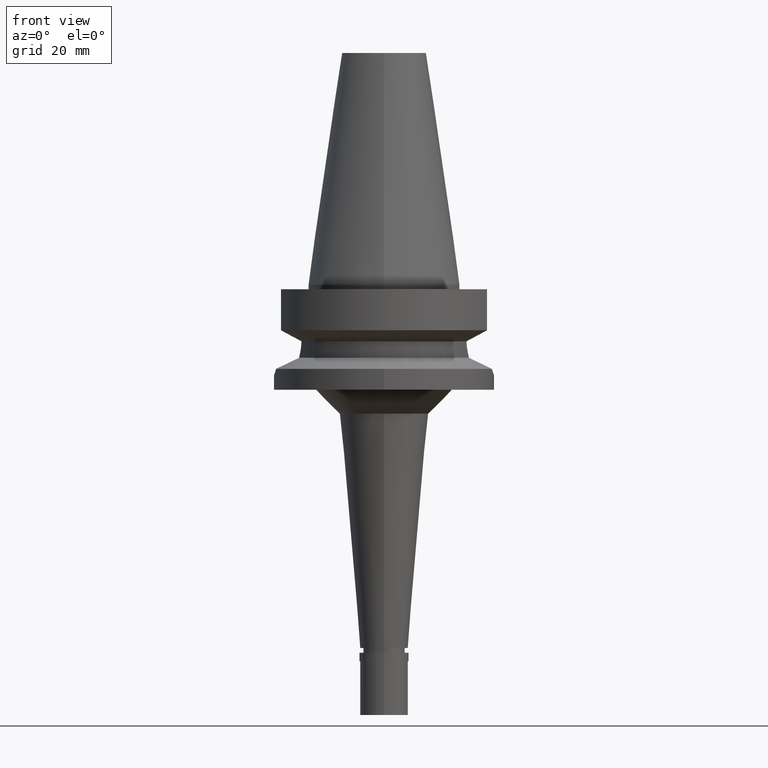
[diagram: clean part render]
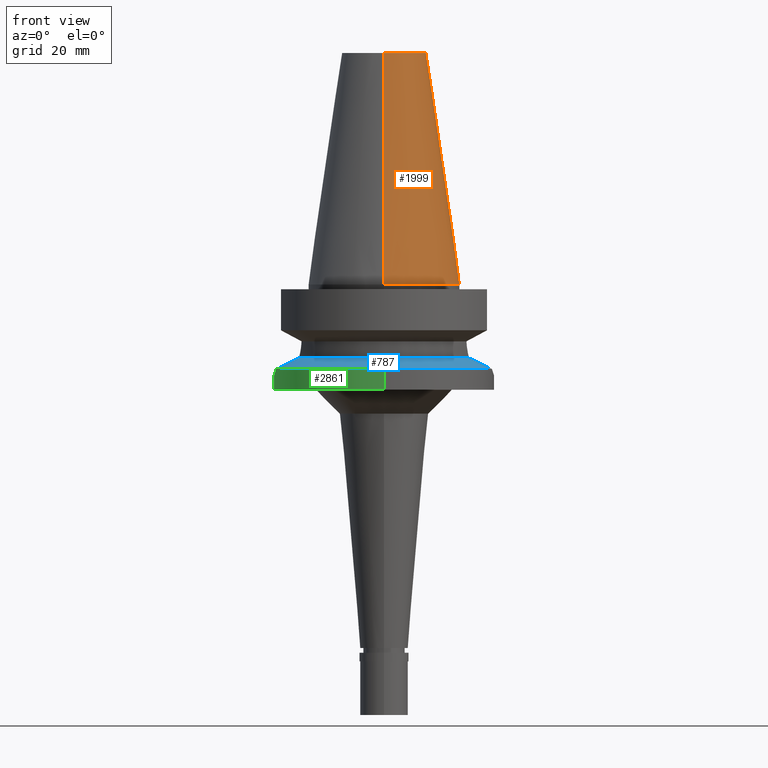
[diagram: same view with three faces highlighted in distinct colors, each labeled with its STEP entity id]
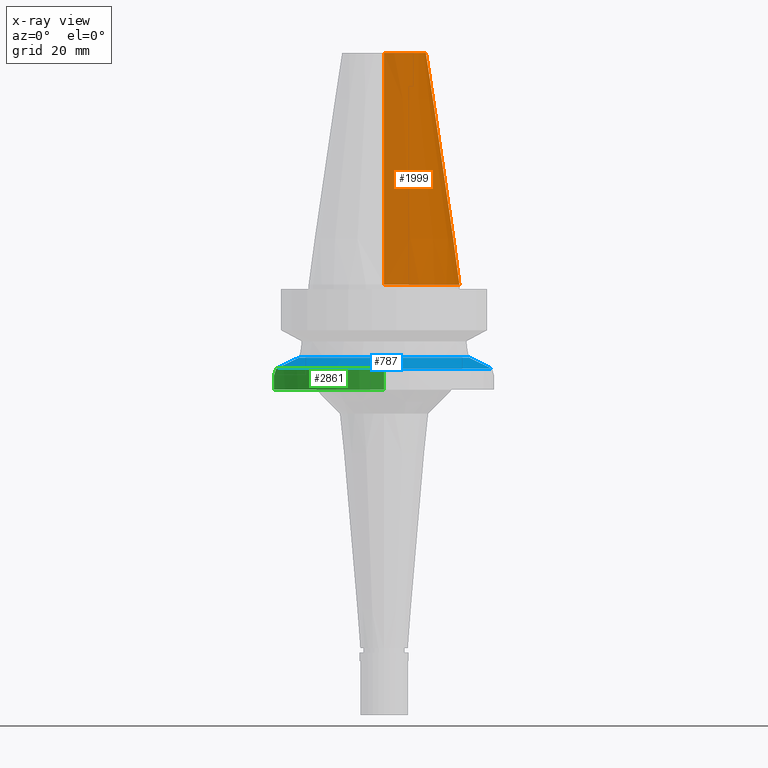
[diagram: x-ray of the same camera — body ghosted, the three highlighted faces saturated]
A machine part, front view with three faces highlighted in distinct colors.
The next image is the same camera in x-ray (body ghosted, the three faces saturated) — at least one of them is partly hidden behind the body in this view.
Their STEP definitions:

[orange] entity #1999 — the highlighted conical surface has half-angle 8.297 deg.
#13 = VERTEX_POINT ( 'NONE', #2253 ) ;
#24 = EDGE_CURVE ( 'NONE', #13, #2837, #2209, .T. ) ;
#30 = DIRECTION ( 'NONE',  ( 0.0000000000000000000, 1.000000000000000000, 0.0000000000000000000 ) ) ;
#53 = AXIS2_PLACEMENT_3D ( 'NONE', #379, #2668, #1052 ) ;
#176 = EDGE_CURVE ( 'NONE', #1570, #722, #1206, .T. ) ;
#271 = ORIENTED_EDGE ( 'NONE', *, *, #24, .T. ) ;
#379 = CARTESIAN_POINT ( 'NONE',  ( 0.0000000000000000000, 1.521011324540999938E-14, 24.19999999999999929 ) ) ;
#381 = AXIS2_PLACEMENT_3D ( 'NONE', #613, #1989, #1974 ) ;
#424 = CARTESIAN_POINT ( 'NONE',  ( 0.0000000000000000000, -8.816791732783000768, 48.39999999999999858 ) ) ;
#427 = CARTESIAN_POINT ( 'NONE',  ( 0.0000000000000000000, 15.87500000000000000, -1.847411112975999717E-13 ) ) ;
#520 = DIRECTION ( 'NONE',  ( 0.0000000000000000000, 0.1443043893539925626, -0.9895333461855498891 ) ) ;
#540 = VECTOR ( 'NONE', #1559, 1000.000000000000114 ) ;
#613 = CARTESIAN_POINT ( 'NONE',  ( 0.0000000000000000000, 1.521011324540999938E-14, 48.39999999999999858 ) ) ;
#722 = VERTEX_POINT ( 'NONE', #427 ) ;
#749 = ORIENTED_EDGE ( 'NONE', *, *, #176, .F. ) ;
#941 = EDGE_CURVE ( 'NONE', #1570, #13, #1284, .T. ) ;
#1045 = CARTESIAN_POINT ( 'NONE',  ( 0.0000000000000000000, 8.816791732783000768, 48.39999999999999858 ) ) ;
#1052 = DIRECTION ( 'NONE',  ( 0.0000000000000000000, -1.000000000000000000, 0.0000000000000000000 ) ) ;
#1206 = LINE ( 'NONE', #1454, #1718 ) ;
#1284 = CIRCLE ( 'NONE', #381, 8.816791732783000768 ) ;
#1292 = EDGE_LOOP ( 'NONE', ( #1398, #271, #2726, #749 ) ) ;
#1398 = ORIENTED_EDGE ( 'NONE', *, *, #941, .T. ) ;
#1454 = CARTESIAN_POINT ( 'NONE',  ( 0.0000000000000000000, 8.816791732783000768, 48.39999999999999858 ) ) ;
#1559 = DIRECTION ( 'NONE',  ( 0.0000000000000000000, -0.1443043893539925626, -0.9895333461855498891 ) ) ;
#1570 = VERTEX_POINT ( 'NONE', #1045 ) ;
#1599 = CARTESIAN_POINT ( 'NONE',  ( 0.0000000000000000000, 1.521011324540999938E-14, -3.694822225953000089E-13 ) ) ;
#1718 = VECTOR ( 'NONE', #520, 1000.000000000000114 ) ;
#1818 = AXIS2_PLACEMENT_3D ( 'NONE', #1599, #2503, #30 ) ;
#1938 = FACE_OUTER_BOUND ( 'NONE', #1292, .T. ) ;
#1974 = DIRECTION ( 'NONE',  ( 0.0000000000000000000, 1.000000000000000000, 0.0000000000000000000 ) ) ;
#1989 = DIRECTION ( 'NONE',  ( 0.0000000000000000000, 0.0000000000000000000, -1.000000000000000000 ) ) ;
#1999 = ADVANCED_FACE ( 'NONE', ( #1938 ), #2757, .T. ) ;
#2209 = LINE ( 'NONE', #424, #540 ) ;
#2253 = CARTESIAN_POINT ( 'NONE',  ( 0.0000000000000000000, -8.816791732783000768, 48.39999999999999858 ) ) ;
#2265 = EDGE_CURVE ( 'NONE', #722, #2837, #2529, .T. ) ;
#2503 = DIRECTION ( 'NONE',  ( 0.0000000000000000000, 0.0000000000000000000, -1.000000000000000000 ) ) ;
#2529 = CIRCLE ( 'NONE', #1818, 15.87500000000000000 ) ;
#2668 = DIRECTION ( 'NONE',  ( 0.0000000000000000000, 0.0000000000000000000, -1.000000000000000000 ) ) ;
#2726 = ORIENTED_EDGE ( 'NONE', *, *, #2265, .F. ) ;
#2757 = CONICAL_SURFACE ( 'NONE', #53, 12.34589586639000025, 0.1448099680379422438 ) ;
#2837 = VERTEX_POINT ( 'NONE', #2927 ) ;
#2927 = CARTESIAN_POINT ( 'NONE',  ( 0.0000000000000000000, -15.87500000000000000, -1.847411112975999717E-13 ) ) ;

[blue] entity #787 — the highlighted conical surface has half-angle 60 deg.
#7 = AXIS2_PLACEMENT_3D ( 'NONE', #482, #64, #1198 ) ;
#8 = DIRECTION ( 'NONE',  ( 0.0000000000000000000, -1.000000000000000000, 0.0000000000000000000 ) ) ;
#9 = VERTEX_POINT ( 'NONE', #1341 ) ;
#64 = DIRECTION ( 'NONE',  ( 0.0000000000000000000, 0.0000000000000000000, -1.000000000000000000 ) ) ;
#90 = CARTESIAN_POINT ( 'NONE',  ( 17.75736593456000278, -6.758398853743999624, -15.32339055352999857 ) ) ;
#101 = EDGE_CURVE ( 'NONE', #2897, #2338, #1432, .T. ) ;
#124 = CARTESIAN_POINT ( 'NONE',  ( -17.75736593456000278, -6.758398853743999624, -15.32339055352999857 ) ) ;
#146 = AXIS2_PLACEMENT_3D ( 'NONE', #1677, #490, #2753 ) ;
#280 = CARTESIAN_POINT ( 'NONE',  ( -22.55786346208000026, -4.488072640470000430, -17.63279163029000074 ) ) ;
#482 = CARTESIAN_POINT ( 'NONE',  ( 0.0000000000000000000, 1.022848384030000006E-14, -16.47809109191000232 ) ) ;
#483 = B_SPLINE_CURVE_WITH_KNOTS ( 'NONE', 3,
 ( #1263, #1276, #2168, #124 ),
 .UNSPECIFIED., .F., .F.,
 ( 4, 4 ),
 ( 0.0000000000000000000, 1.000000000000000000 ),
 .UNSPECIFIED. ) ;
#485 = EDGE_CURVE ( 'NONE', #1382, #2897, #483, .T. ) ;
#490 = DIRECTION ( 'NONE',  ( 0.0000000000000000000, 0.0000000000000000000, 1.000000000000000000 ) ) ;
#514 = CARTESIAN_POINT ( 'NONE',  ( -17.75736593456000278, -6.758398853743999624, -15.32339055352999857 ) ) ;
#718 = ORIENTED_EDGE ( 'NONE', *, *, #1160, .F. ) ;
#787 = ADVANCED_FACE ( 'NONE', ( #808 ), #1968, .T. ) ;
#808 = FACE_OUTER_BOUND ( 'NONE', #2780, .T. ) ;
#825 = CIRCLE ( 'NONE', #2484, 23.00000000000001066 ) ;
#882 = EDGE_CURVE ( 'NONE', #1651, #9, #825, .T. ) ;
#977 = CARTESIAN_POINT ( 'NONE',  ( 0.0000000000000000000, 1.022848384030000006E-14, -17.63279163029000074 ) ) ;
#1073 = CARTESIAN_POINT ( 'NONE',  ( 22.55786346208000026, -4.488072640470000430, -17.63279163029000074 ) ) ;
#1153 = ORIENTED_EDGE ( 'NONE', *, *, #485, .F. ) ;
#1160 = EDGE_CURVE ( 'NONE', #9, #1382, #1244, .T. ) ;
#1198 = DIRECTION ( 'NONE',  ( 0.0000000000000000000, -1.000000000000000000, 0.0000000000000000000 ) ) ;
#1244 = CIRCLE ( 'NONE', #2419, 23.00000000000000000 ) ;
#1247 = B_SPLINE_CURVE_WITH_KNOTS ( 'NONE', 3,
 ( #90, #2378, #2833, #2808 ),
 .UNSPECIFIED., .F., .F.,
 ( 4, 4 ),
 ( 0.0000000000000000000, 1.000000000000000000 ),
 .UNSPECIFIED. ) ;
#1263 = CARTESIAN_POINT ( 'NONE',  ( -22.55786346208000026, -4.488072640470000430, -17.63279163029000074 ) ) ;
#1276 = CARTESIAN_POINT ( 'NONE',  ( -21.37344794595160380, -5.343258989439327422, -17.05846002343262313 ) ) ;
#1341 = CARTESIAN_POINT ( 'NONE',  ( 0.0000000000000000000, -23.00000000000000000, -17.63279163029000074 ) ) ;
#1382 = VERTEX_POINT ( 'NONE', #280 ) ;
#1432 = CIRCLE ( 'NONE', #146, 19.00000000000000000 ) ;
#1609 = DIRECTION ( 'NONE',  ( 0.9807766722643714852, -0.1951335930638943839, 0.0000000000000000000 ) ) ;
#1625 = DIRECTION ( 'NONE',  ( 0.0000000000000000000, 0.0000000000000000000, -1.000000000000000000 ) ) ;
#1651 = VERTEX_POINT ( 'NONE', #1073 ) ;
#1677 = CARTESIAN_POINT ( 'NONE',  ( 0.0000000000000000000, 1.022848384030000006E-14, -15.32339055352999857 ) ) ;
#1853 = ORIENTED_EDGE ( 'NONE', *, *, #101, .F. ) ;
#1968 = CONICAL_SURFACE ( 'NONE', #7, 21.00000000000000000, 1.047197551196400456 ) ;
#2060 = ORIENTED_EDGE ( 'NONE', *, *, #2942, .F. ) ;
#2061 = CARTESIAN_POINT ( 'NONE',  ( 0.0000000000000000000, 1.022848384030000006E-14, -17.63279163029000074 ) ) ;
#2168 = CARTESIAN_POINT ( 'NONE',  ( -19.77328210344494153, -6.137069160773991783, -16.28355951931771628 ) ) ;
#2311 = DIRECTION ( 'NONE',  ( 0.0000000000000000000, 0.0000000000000000000, -1.000000000000000000 ) ) ;
#2338 = VERTEX_POINT ( 'NONE', #2538 ) ;
#2357 = ORIENTED_EDGE ( 'NONE', *, *, #882, .F. ) ;
#2378 = CARTESIAN_POINT ( 'NONE',  ( 19.77328210355009475, -6.137069160734052176, -16.28355951937946600 ) ) ;
#2419 = AXIS2_PLACEMENT_3D ( 'NONE', #2061, #2311, #8 ) ;
#2484 = AXIS2_PLACEMENT_3D ( 'NONE', #977, #1625, #1609 ) ;
#2538 = CARTESIAN_POINT ( 'NONE',  ( 17.75736593456000278, -6.758398853743999624, -15.32339055352999857 ) ) ;
#2753 = DIRECTION ( 'NONE',  ( 0.0000000000000000000, -1.000000000000000000, 0.0000000000000000000 ) ) ;
#2780 = EDGE_LOOP ( 'NONE', ( #718, #2357, #2060, #1853, #1153 ) ) ;
#2808 = CARTESIAN_POINT ( 'NONE',  ( 22.55786346208000026, -4.488072640470000430, -17.63279163029000074 ) ) ;
#2833 = CARTESIAN_POINT ( 'NONE',  ( 21.37344794605676412, -5.343258989378282919, -17.05846002347363211 ) ) ;
#2897 = VERTEX_POINT ( 'NONE', #514 ) ;
#2942 = EDGE_CURVE ( 'NONE', #2338, #1651, #1247, .T. ) ;

[green] entity #2861 — the highlighted cylindrical surface (partial cylindrical patch) has radius 23 mm, axis along (0, 0, -1).
#2 = CARTESIAN_POINT ( 'NONE',  ( -22.55786346208000026, 4.488072640470000430, -17.63279163029000074 ) ) ;
#8 = DIRECTION ( 'NONE',  ( 0.0000000000000000000, -1.000000000000000000, 0.0000000000000000000 ) ) ;
#9 = VERTEX_POINT ( 'NONE', #1341 ) ;
#49 = CARTESIAN_POINT ( 'NONE',  ( -22.99968787904577994, -0.4019489961674416745, -18.99908015454936105 ) ) ;
#81 = CARTESIAN_POINT ( 'NONE',  ( -22.88248210310216990, -2.323175083979335920, -18.65751861243187903 ) ) ;
#83 = ORIENTED_EDGE ( 'NONE', *, *, #936, .F. ) ;
#97 = CARTESIAN_POINT ( 'NONE',  ( -23.00029662913051354, 0.3642194551311406792, -19.00087563674810909 ) ) ;
#144 = DIRECTION ( 'NONE',  ( 0.0000000000000000000, 2.277793377031000010E-14, -1.000000000000000000 ) ) ;
#166 = DIRECTION ( 'NONE',  ( -0.9807766722643714852, 0.1951335930638943839, 0.0000000000000000000 ) ) ;
#251 = ORIENTED_EDGE ( 'NONE', *, *, #2481, .T. ) ;
#280 = CARTESIAN_POINT ( 'NONE',  ( -22.55786346208000026, -4.488072640470000430, -17.63279163029000074 ) ) ;
#289 = CARTESIAN_POINT ( 'NONE',  ( -22.94716318959646273, -1.569022884965406650, -18.84812733467171952 ) ) ;
#299 = AXIS2_PLACEMENT_3D ( 'NONE', #692, #2764, #1121 ) ;
#390 = AXIS2_PLACEMENT_3D ( 'NONE', #2138, #2818, #795 ) ;
#406 = VERTEX_POINT ( 'NONE', #2400 ) ;
#474 = CARTESIAN_POINT ( 'NONE',  ( -22.83487050074856839, 2.751754037599404068, -18.51566715690522713 ) ) ;
#692 = CARTESIAN_POINT ( 'NONE',  ( 0.0000000000000000000, 1.899855811856999906E-14, 55.13500000000000512 ) ) ;
#699 = CARTESIAN_POINT ( 'NONE',  ( -22.86731871476289513, 2.468351266415095502, -18.61246133177552053 ) ) ;
#732 = CARTESIAN_POINT ( 'NONE',  ( -22.55786346208000026, -4.488072640470000430, -17.63279163029000074 ) ) ;
#738 = VERTEX_POINT ( 'NONE', #1110 ) ;
#739 = CYLINDRICAL_SURFACE ( 'NONE', #299, 23.00000000000000000 ) ;
#745 = CARTESIAN_POINT ( 'NONE',  ( -22.95960384481340455, -1.374149555557130808, -18.88428810408145964 ) ) ;
#795 = DIRECTION ( 'NONE',  ( 0.0000000000000000000, 1.000000000000000000, 0.0000000000000000000 ) ) ;
#824 = AXIS2_PLACEMENT_3D ( 'NONE', #1934, #2425, #166 ) ;
#910 = CARTESIAN_POINT ( 'NONE',  ( -22.77695286861406387, 3.197805388797879456, -18.34032109740770622 ) ) ;
#936 = EDGE_CURVE ( 'NONE', #9, #406, #2174, .T. ) ;
#947 = CARTESIAN_POINT ( 'NONE',  ( -22.88063589474441173, 2.341420696179223437, -18.65200554884931705 ) ) ;
#965 = CIRCLE ( 'NONE', #824, 23.00000000000001066 ) ;
#996 = CARTESIAN_POINT ( 'NONE',  ( -22.81116729615446204, -3.018879001667276629, -18.44574256113926936 ) ) ;
#997 = VERTEX_POINT ( 'NONE', #2869 ) ;
#1007 = CARTESIAN_POINT ( 'NONE',  ( -22.91272026981804544, -2.006576538415706157, -18.74703710258711098 ) ) ;
#1061 = VECTOR ( 'NONE', #144, 1000.000000000000000 ) ;
#1063 = LINE ( 'NONE', #2166, #1966 ) ;
#1110 = CARTESIAN_POINT ( 'NONE',  ( 0.0000000000000000000, 23.00000000000000000, -17.63279163029000074 ) ) ;
#1121 = DIRECTION ( 'NONE',  ( 0.0000000000000000000, -1.000000000000000000, 0.0000000000000000000 ) ) ;
#1160 = EDGE_CURVE ( 'NONE', #9, #1382, #1244, .T. ) ;
#1225 = CARTESIAN_POINT ( 'NONE',  ( -22.92481566646231883, -1.860812591668278060, -18.78261217926351989 ) ) ;
#1244 = CIRCLE ( 'NONE', #2419, 23.00000000000000000 ) ;
#1341 = CARTESIAN_POINT ( 'NONE',  ( 0.0000000000000000000, -23.00000000000000000, -17.63279163029000074 ) ) ;
#1382 = VERTEX_POINT ( 'NONE', #280 ) ;
#1453 = EDGE_CURVE ( 'NONE', #997, #406, #2102, .T. ) ;
#1620 = B_SPLINE_CURVE_WITH_KNOTS ( 'NONE', 3,
 ( #2, #2507, #2931, #910, #1830, #474, #2076, #699, #2743, #1913, #947, #2097, #1633, #2144, #97, #49, #2754, #745, #289, #1225, #1007, #2134, #2595, #1896, #81, #996, #2321, #732 ),
 .UNSPECIFIED., .F., .F.,
 ( 4, 2, 2, 1, 1, 2, 2, 2, 2, 2, 2, 1, 1, 2, 2, 4 ),
 ( 0.0000000000000000000, 0.1250000000000047740, 0.1875000000000073830, 0.2187500000000083544, 0.2343750000000086875, 0.2421875000000088540, 0.2500000000000089928, 0.3750000000000092149, 0.5000000000000093259, 0.6250000000000095479, 0.6875000000000094369, 0.7187500000000093259, 0.7343750000000092149, 0.7421875000000089928, 0.7500000000000088818, 1.000000000000000000 ),
 .UNSPECIFIED. ) ;
#1633 = CARTESIAN_POINT ( 'NONE',  ( -22.95174273016442967, 1.537723654057536526, -18.86162768276110668 ) ) ;
#1662 = ORIENTED_EDGE ( 'NONE', *, *, #1160, .T. ) ;
#1743 = DIRECTION ( 'NONE',  ( 0.0000000000000000000, -2.603192430893000129E-14, -1.000000000000000000 ) ) ;
#1830 = CARTESIAN_POINT ( 'NONE',  ( -22.80159199137882808, 3.017607166938789831, -18.41541534250542256 ) ) ;
#1855 = EDGE_CURVE ( 'NONE', #2474, #1382, #1620, .T. ) ;
#1896 = CARTESIAN_POINT ( 'NONE',  ( -22.88511174645163493, -2.297151529144149329, -18.66532437569020075 ) ) ;
#1913 = CARTESIAN_POINT ( 'NONE',  ( -22.87861630502021626, 2.361023336851463927, -18.64601014833198889 ) ) ;
#1934 = CARTESIAN_POINT ( 'NONE',  ( 0.0000000000000000000, 1.022848384030000006E-14, -17.63279163029000074 ) ) ;
#1945 = CARTESIAN_POINT ( 'NONE',  ( -22.55786346208000026, 4.488072640470000430, -17.63279163029000074 ) ) ;
#1954 = CARTESIAN_POINT ( 'NONE',  ( 0.0000000000000000000, -23.00000000000000000, -17.63279163029000074 ) ) ;
#1966 = VECTOR ( 'NONE', #1743, 1000.000000000000000 ) ;
#2061 = CARTESIAN_POINT ( 'NONE',  ( 0.0000000000000000000, 1.022848384030000006E-14, -17.63279163029000074 ) ) ;
#2076 = CARTESIAN_POINT ( 'NONE',  ( -22.85058971173907949, 2.619934289209736367, -18.56269662188988079 ) ) ;
#2097 = CARTESIAN_POINT ( 'NONE',  ( -22.92236411251145611, 1.929440396597891016, -18.77583475499273646 ) ) ;
#2102 = CIRCLE ( 'NONE', #390, 23.00000000000000000 ) ;
#2134 = CARTESIAN_POINT ( 'NONE',  ( -22.89699611234801324, -2.176205502311962192, -18.70055256333220939 ) ) ;
#2138 = CARTESIAN_POINT ( 'NONE',  ( 0.0000000000000000000, 1.899855811856999906E-14, -22.00000000000000000 ) ) ;
#2144 = CARTESIAN_POINT ( 'NONE',  ( -22.99070996733248151, 0.7559783031808541276, -18.97414752057810006 ) ) ;
#2166 = CARTESIAN_POINT ( 'NONE',  ( 0.0000000000000000000, 23.00000000000000000, -17.63279163029000074 ) ) ;
#2174 = LINE ( 'NONE', #1954, #1061 ) ;
#2311 = DIRECTION ( 'NONE',  ( 0.0000000000000000000, 0.0000000000000000000, -1.000000000000000000 ) ) ;
#2321 = CARTESIAN_POINT ( 'NONE',  ( -22.70368143406573580, -3.755165184249504406, -18.12500238355453064 ) ) ;
#2387 = EDGE_LOOP ( 'NONE', ( #2862, #251, #2451, #83, #1662, #2888 ) ) ;
#2400 = CARTESIAN_POINT ( 'NONE',  ( 0.0000000000000000000, -23.00000000000000000, -22.00000000000000000 ) ) ;
#2419 = AXIS2_PLACEMENT_3D ( 'NONE', #2061, #2311, #8 ) ;
#2425 = DIRECTION ( 'NONE',  ( 0.0000000000000000000, 0.0000000000000000000, -1.000000000000000000 ) ) ;
#2451 = ORIENTED_EDGE ( 'NONE', *, *, #1453, .T. ) ;
#2465 = EDGE_CURVE ( 'NONE', #2474, #738, #965, .T. ) ;
#2474 = VERTEX_POINT ( 'NONE', #1945 ) ;
#2481 = EDGE_CURVE ( 'NONE', #738, #997, #1063, .T. ) ;
#2507 = CARTESIAN_POINT ( 'NONE',  ( -22.63167620612567887, 4.117076461196697679, -17.88194765579943635 ) ) ;
#2595 = CARTESIAN_POINT ( 'NONE',  ( -22.88991157456404935, -2.248789769929351756, -18.67955884514955400 ) ) ;
#2722 = FACE_OUTER_BOUND ( 'NONE', #2387, .T. ) ;
#2743 = CARTESIAN_POINT ( 'NONE',  ( -22.87414327110200674, 2.403886245602351757, -18.63272961378897108 ) ) ;
#2754 = CARTESIAN_POINT ( 'NONE',  ( -22.98955272984680320, -0.7902386442159051727, -18.97077812706559996 ) ) ;
#2764 = DIRECTION ( 'NONE',  ( 0.0000000000000000000, 0.0000000000000000000, -1.000000000000000000 ) ) ;
#2818 = DIRECTION ( 'NONE',  ( 0.0000000000000000000, 0.0000000000000000000, 1.000000000000000000 ) ) ;
#2861 = ADVANCED_FACE ( 'NONE', ( #2722 ), #739, .T. ) ;
#2862 = ORIENTED_EDGE ( 'NONE', *, *, #2465, .T. ) ;
#2869 = CARTESIAN_POINT ( 'NONE',  ( 0.0000000000000000000, 23.00000000000000000, -22.00000000000000000 ) ) ;
#2888 = ORIENTED_EDGE ( 'NONE', *, *, #1855, .F. ) ;
#2931 = CARTESIAN_POINT ( 'NONE',  ( -22.69567515076490594, 3.744427589233304765, -18.08743531940183757 ) ) ;